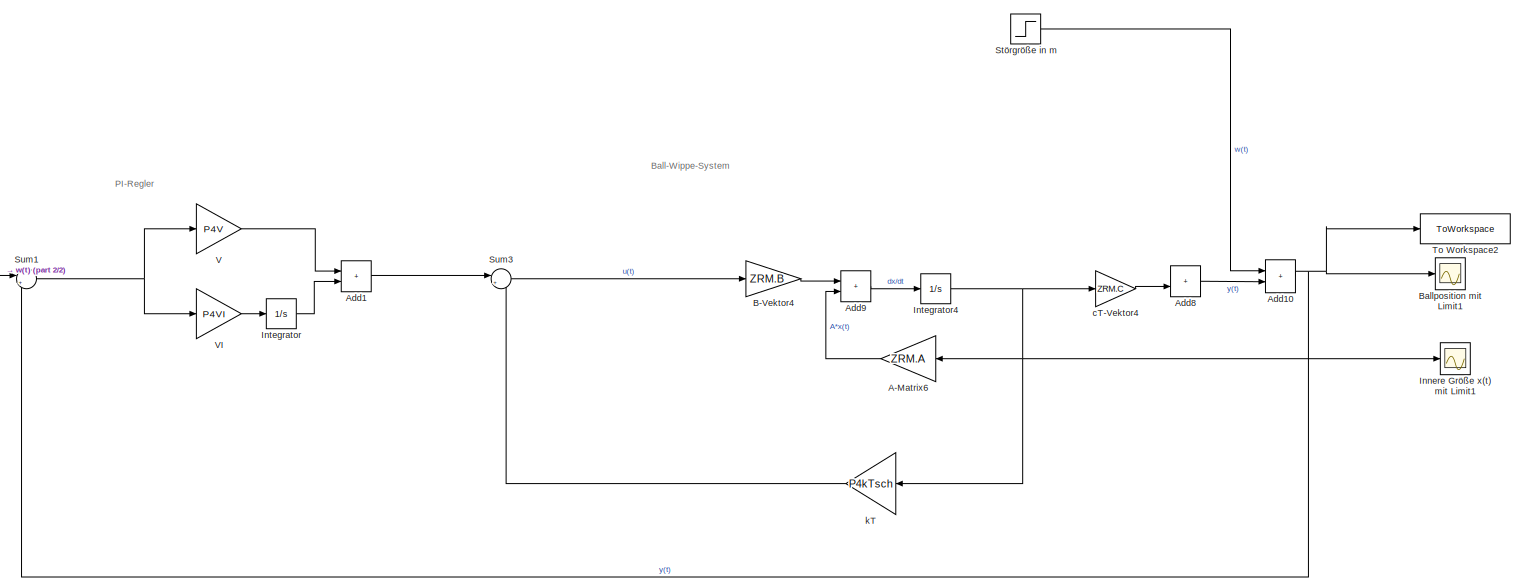
[diagram: root canvas - part 1/2, most of the canvas]
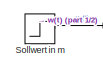
[diagram: root canvas - part 2/2, middle left region]
MODEL slx_e908cb5b19f4
KIND model
CONFIG AbsTol = auto
CONFIG EnableMultiTasking = off
CONFIG FixedStep = auto
CONFIG MaxStep = auto
CONFIG MinStep = auto
CONFIG RelTol = 1e-3
CONFIG SampleTimeConstraint = Unconstrained
CONFIG SolverName = VariableStepAuto
CONFIG StartTime = 0.0
CONFIG StopTime = 15
BLOCK [Gain] A-Matrix6
  Gain = ZRM.A
  Multiplication = Matrix(K*u) (u vector)
  NameLocation = top
BLOCK [Sum] Add1
  IconShape = rectangular
  Ports = [2, 1]
BLOCK [Sum] Add10
  IconShape = rectangular
  Ports = [2, 1]
BLOCK [Sum] Add8
  IconShape = rectangular
  Ports = [2, 1]
BLOCK [Sum] Add9
  IconShape = rectangular
  Ports = [2, 1]
BLOCK [Gain] B-Vektor4
  Gain = ZRM.B
  Multiplication = Matrix(K*u) (u vector)
BLOCK [Scope] Ballposition mit Limit1
  Floating = off
  NumInputPorts = 1
  Ports = [1]
  ScopeSpecificationString = Simulink.scopes.TimeScopeBlockCfg('CurrentConfiguration', extmgr.ConfigurationSet(extmgr.Configuration('Core','General UI',true),extmgr.Configuration('Core','Source UI',true),extmgr.Configuration('Sources','WiredSimulink',true,'DataLoggingVariableName','ScopeData4'),extmgr.Configuration('Visuals','Time Domain',true,'SerializedDisplays',{struct('MinYLimReal','-1.27962','MaxYLimReal','1.95606','YLab...<+1508ch>
BLOCK [Scope] Innere Größe x(t) mit Limit1
  Floating = off
  NumInputPorts = 1
  Ports = [1]
  ScopeSpecificationString = Simulink.scopes.TimeScopeBlockCfg('CurrentConfiguration', extmgr.ConfigurationSet(extmgr.Configuration('Core','General UI',true),extmgr.Configuration('Core','Source UI',true),extmgr.Configuration('Sources','WiredSimulink',true,'DataLoggingVariableName','ScopeData6'),extmgr.Configuration('Visuals','Time Domain',true,'SerializedDisplays',{struct('MinYLimReal','-63379862286589571354532326100873995319...<+4068ch>
BLOCK [Integrator] Integrator
  Ports = [1, 1]
BLOCK [Integrator] Integrator4
  InitialCondition = x0
  Ports = [1, 1]
BLOCK [Step] Sollwert in m
  After = wsoll
  SampleTime = 0
  Time = zeitverzoegerung
BLOCK [Step] Störgröße in m
  After = z0
  SampleTime = 0
  Time = 5
BLOCK [Sum] Sum1
  Inputs = |+-
  Ports = [2, 1]
BLOCK [Sum] Sum3
  Inputs = |+-
  Ports = [2, 1]
BLOCK [ToWorkspace] To Workspace2
  FixptAsFi = on
  MaxDataPoints = inf
  Ports = [1]
  SampleTime = -1
  SaveFormat = Timeseries
  VariableName = yt
BLOCK [Gain] V
  Gain = P4V
BLOCK [Gain] VI
  Gain = P4VI
BLOCK [Gain] cT-Vektor4
  Gain = ZRM.C
  Multiplication = Matrix(K*u) (u vector)
BLOCK [Gain] kT
  Gain = P4kTsch
  Multiplication = Matrix(K*u) (u vector)
  NameLocation = top
ANNOTATION (root): Ball-Wippe-System
ANNOTATION (root): PI-Regler
LINE A-Matrix6:1 -> Add9:2
NET Add10:1 -> Ballposition mit Limit1:1, Sum1:2, To Workspace2:1
LINE Add1:1 -> Sum3:1
LINE Add8:1 -> Add10:2
LINE Add9:1 -> Integrator4:1
LINE B-Vektor4:1 -> Add9:1
NET Integrator4:1 -> A-Matrix6:1, Innere Größe x(t) mit Limit1:1, cT-Vektor4:1, kT:1
LINE Integrator:1 -> Add1:2
LINE Sollwert in m:1 -> Sum1:1
LINE Störgröße in m:1 -> Add10:1
NET Sum1:1 -> V:1, VI:1
LINE Sum3:1 -> B-Vektor4:1
LINE V:1 -> Add1:1
LINE VI:1 -> Integrator:1
LINE cT-Vektor4:1 -> Add8:2
LINE kT:1 -> Sum3:2
note: NET lines group one-source signal fan-out (src -> all destinations, sorted); 1:1 wires keep LINE
